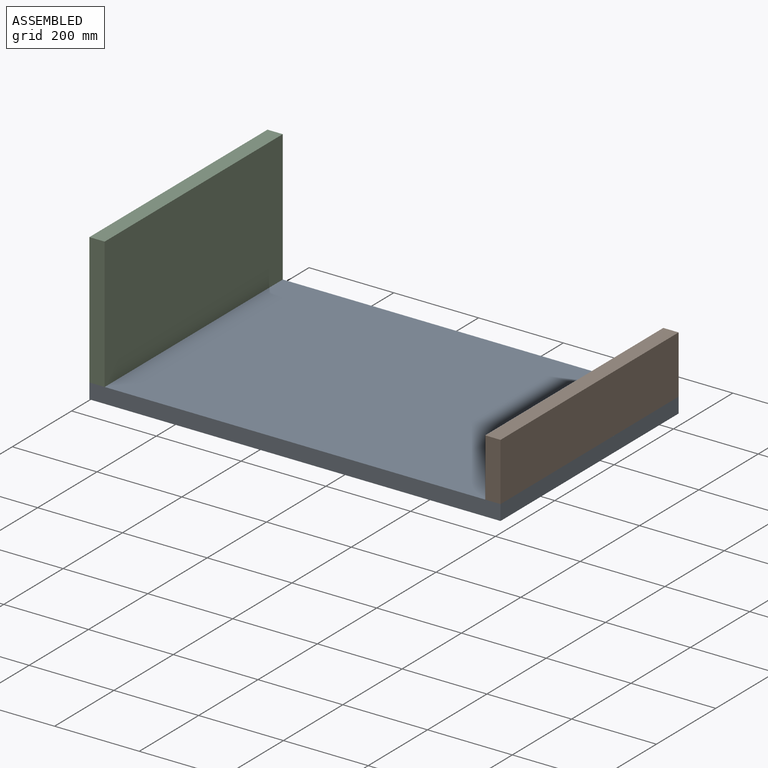
[diagram: assembled view]
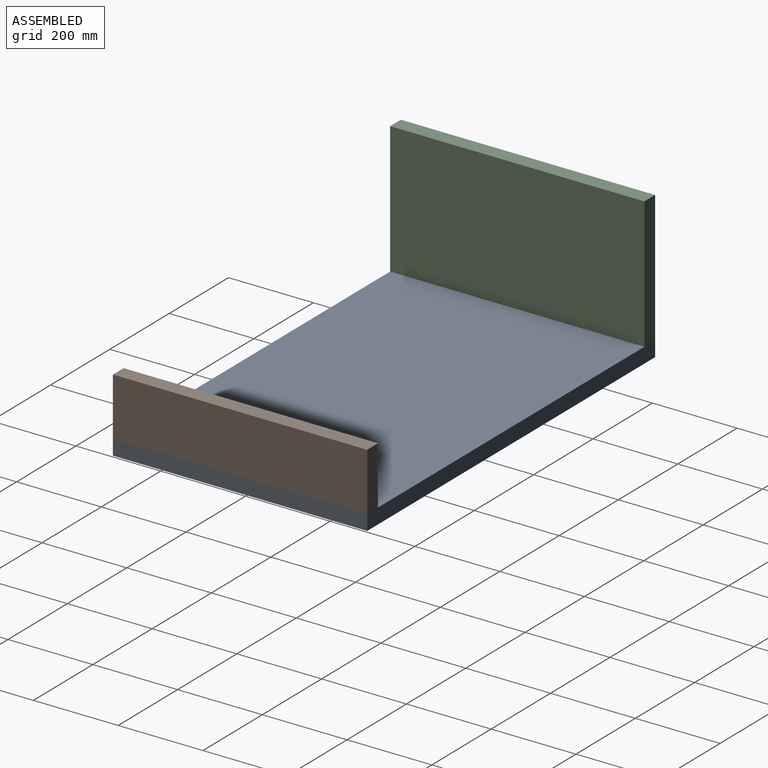
[diagram: assembled view, second angle]
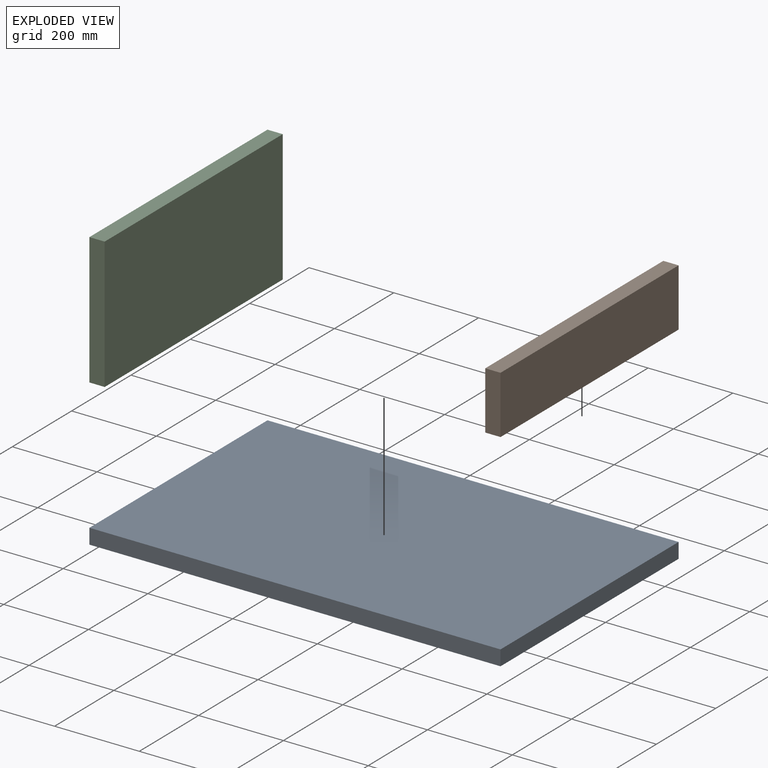
[diagram: exploded view]
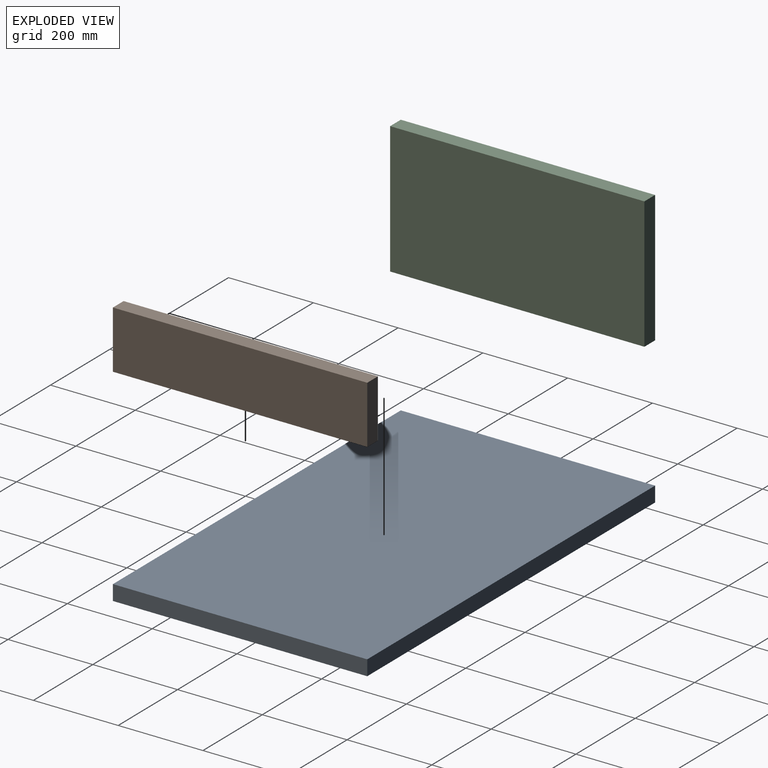
[diagram: exploded view, second angle]
ASSEMBLY  parts=3 mates=2
PART A: 6 faces, bbox 970x600x36 mm
  f0: plane 970x36mm, normal (0,1,0), area 34920mm2, adj f1,f3,f4,f5
  f1: plane 600x36mm, normal (-1,0,0), area 21600mm2, adj f0,f2,f4,f5
  f2: plane 970x36mm, normal (0,-1,0), area 34920mm2, adj f1,f3,f4,f5
  f3: plane 600x36mm, normal (1,0,0), area 21600mm2, adj f0,f2,f4,f5
  f4: plane 970x600mm, normal (0,0,-1), area 582000mm2, adj f0,f1,f2,f3
  f5: plane 970x600mm, normal (0,0,1), area 582000mm2, adj f0,f1,f2,f3
PART B: 6 faces, bbox 36x600x137 mm
  f0: plane 600x36mm, normal (0,0,1), area 21600mm2, adj f1,f3,f4,f5
  f1: plane 137x36mm, normal (0,-1,0), area 4932mm2, adj f0,f2,f4,f5
  f2: plane 600x36mm, normal (0,0,-1), area 21600mm2, adj f1,f3,f4,f5
  f3: plane 137x36mm, normal (0,1,0), area 4932mm2, adj f0,f2,f4,f5
  f4: plane 600x137mm, normal (1,0,0), area 82200mm2, adj f0,f1,f2,f3
  f5: plane 600x137mm, normal (-1,0,0), area 82200mm2, adj f0,f1,f2,f3
PART C: 6 faces, bbox 36x600x310 mm
  f0: plane 310x36mm, normal (0,1,0), area 11160mm2, adj f1,f3,f4,f5
  f1: plane 600x36mm, normal (0,0,1), area 21600mm2, adj f0,f2,f4,f5
  f2: plane 310x36mm, normal (0,-1,0), area 11160mm2, adj f1,f3,f4,f5
  f3: plane 600x36mm, normal (0,0,-1), area 21600mm2, adj f0,f2,f4,f5
  f4: plane 600x310mm, normal (1,0,0), area 186000mm2, adj f0,f1,f2,f3
  f5: plane 600x310mm, normal (-1,0,0), area 186000mm2, adj f0,f1,f2,f3
PLACE A at identity
PLACE B t=(535.07,-136.52,175.08)mm
PLACE C rot(axis=(0,0,1),180deg) t=(-362.93,-18.69,439.89)mm
MATE fastened B.f2 <-> A.f5  axis (0,0,-1) through (571.07,-12.66,0)mm
MATE fastened C.f3 <-> A.f5  axis (0,0,-1) through (-398.93,-12.66,0)mm
